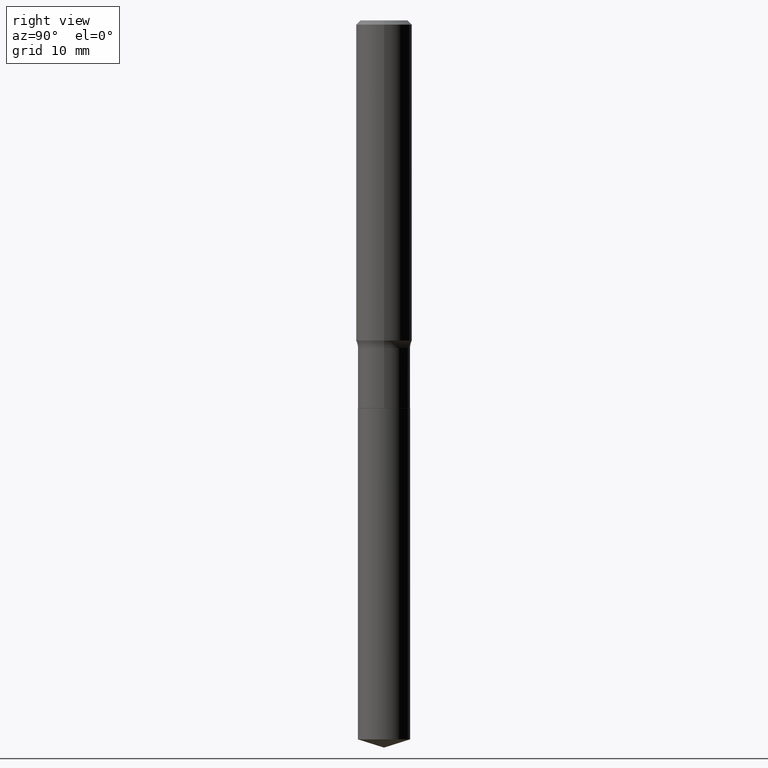
[diagram: clean part render]
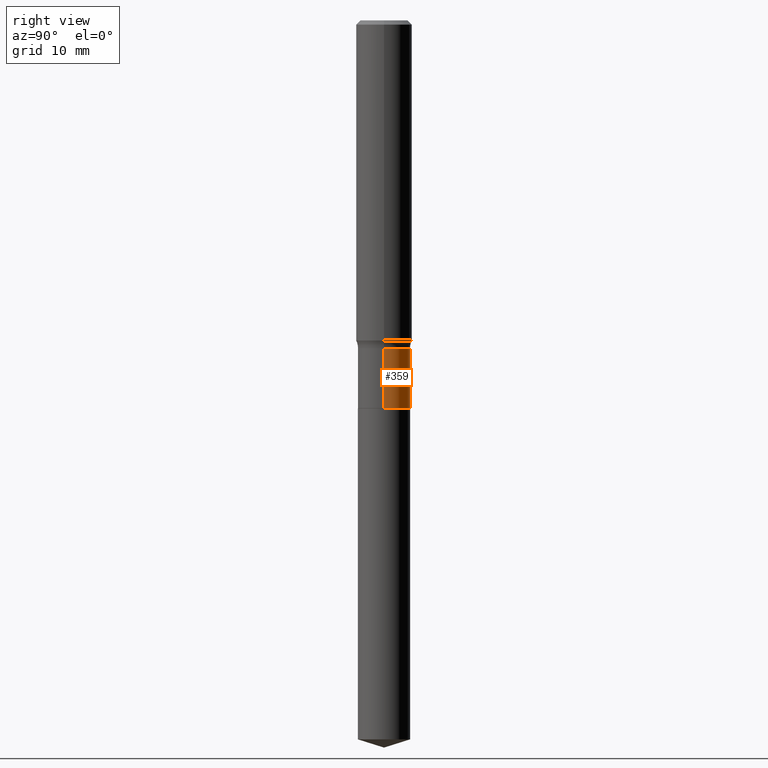
[diagram: same view with one face highlighted and labeled with its STEP entity id]
A machine part, right view. The second image highlights one B-rep face of the part: STEP entity #359.
In plain terms, the highlighted cylindrical surface (edge-blend (fillet) strip) has radius 2.9718 mm, axis along (-0, 0, 1).
Its self-contained STEP definition (entity closure, byte-faithful):
#6 = EDGE_CURVE ( 'NONE', #191, #117, #389, .T. ) ;
#41 = CARTESIAN_POINT ( 'NONE',  ( 3.582367254180606823E-29, -5.114671013271323893E-15, -1.464900000000000091 ) ) ;
#42 = AXIS2_PLACEMENT_3D ( 'NONE', #41, #396, #477 ) ;
#46 = VERTEX_POINT ( 'NONE', #425 ) ;
#53 = CARTESIAN_POINT ( 'NONE',  ( 0.1170000000000000068, -6.869489534173886334E-15, -1.733500000000000263 ) ) ;
#54 = LINE ( 'NONE', #445, #187 ) ;
#83 = ORIENTED_EDGE ( 'NONE', *, *, #342, .T. ) ;
#85 = EDGE_CURVE ( 'NONE', #46, #305, #384, .T. ) ;
#109 = DIRECTION ( 'NONE',  ( -2.445468806185136877E-29, 3.491481338843145188E-15, 1.000000000000000000 ) ) ;
#117 = VERTEX_POINT ( 'NONE', #254 ) ;
#139 = DIRECTION ( 'NONE',  ( -2.445468806185136877E-29, 3.491481338843145188E-15, 1.000000000000000000 ) ) ;
#142 = CARTESIAN_POINT ( 'NONE',  ( 0.000000000000000000, 0.000000000000000000, 0.000000000000000000 ) ) ;
#165 = CARTESIAN_POINT ( 'NONE',  ( 4.239220175521934443E-29, -6.052482900884593475E-15, -1.733500000000000263 ) ) ;
#167 = EDGE_LOOP ( 'NONE', ( #266, #83, #244, #242 ) ) ;
#178 = AXIS2_PLACEMENT_3D ( 'NONE', #142, #258, #231 ) ;
#184 = FACE_OUTER_BOUND ( 'NONE', #167, .T. ) ;
#187 = VECTOR ( 'NONE', #109, 39.37007874015748143 ) ;
#191 = VERTEX_POINT ( 'NONE', #53 ) ;
#224 = CARTESIAN_POINT ( 'NONE',  ( -0.1169999999999999790, -4.752241956238641517E-15, -1.464900000000000091 ) ) ;
#231 = DIRECTION ( 'NONE',  ( 1.000000000000000000, -6.982962677686266711E-15, 4.876176775795935232E-29 ) ) ;
#242 = ORIENTED_EDGE ( 'NONE', *, *, #269, .F. ) ;
#244 = ORIENTED_EDGE ( 'NONE', *, *, #85, .F. ) ;
#254 = CARTESIAN_POINT ( 'NONE',  ( -0.1170000000000000207, -4.752241956238641517E-15, -1.733500000000000263 ) ) ;
#258 = DIRECTION ( 'NONE',  ( -2.445468806185136597E-29, 3.491481338843145583E-15, 1.000000000000000000 ) ) ;
#266 = ORIENTED_EDGE ( 'NONE', *, *, #6, .T. ) ;
#268 = DIRECTION ( 'NONE',  ( 1.000000000000000000, -6.982962677686265922E-15, 0.000000000000000000 ) ) ;
#269 = EDGE_CURVE ( 'NONE', #191, #46, #358, .T. ) ;
#305 = VERTEX_POINT ( 'NONE', #224 ) ;
#308 = DIRECTION ( 'NONE',  ( -2.445468806185136597E-29, 3.491481338843145583E-15, 1.000000000000000000 ) ) ;
#324 = CYLINDRICAL_SURFACE ( 'NONE', #178, 0.1169999999999999929 ) ;
#342 = EDGE_CURVE ( 'NONE', #117, #305, #54, .T. ) ;
#358 = LINE ( 'NONE', #471, #481 ) ;
#359 = ADVANCED_FACE ( 'NONE', ( #184 ), #324, .T. ) ;
#384 = CIRCLE ( 'NONE', #42, 0.1169999999999999790 ) ;
#389 = CIRCLE ( 'NONE', #439, 0.1170000000000000068 ) ;
#396 = DIRECTION ( 'NONE',  ( -2.445468806185136597E-29, 3.491481338843145583E-15, 1.000000000000000000 ) ) ;
#425 = CARTESIAN_POINT ( 'NONE',  ( 0.1169999999999999790, -5.931677646560616751E-15, -1.464900000000000091 ) ) ;
#439 = AXIS2_PLACEMENT_3D ( 'NONE', #165, #308, #268 ) ;
#445 = CARTESIAN_POINT ( 'NONE',  ( -0.1169999999999999929, 8.313350008393171670E-16, -5.755154055598239585E-30 ) ) ;
#471 = CARTESIAN_POINT ( 'NONE',  ( 0.1169999999999999929, -8.170066332892931539E-16, 5.705126827681244093E-30 ) ) ;
#477 = DIRECTION ( 'NONE',  ( 1.000000000000000000, -6.982962677686267499E-15, 0.000000000000000000 ) ) ;
#481 = VECTOR ( 'NONE', #139, 39.37007874015748143 ) ;